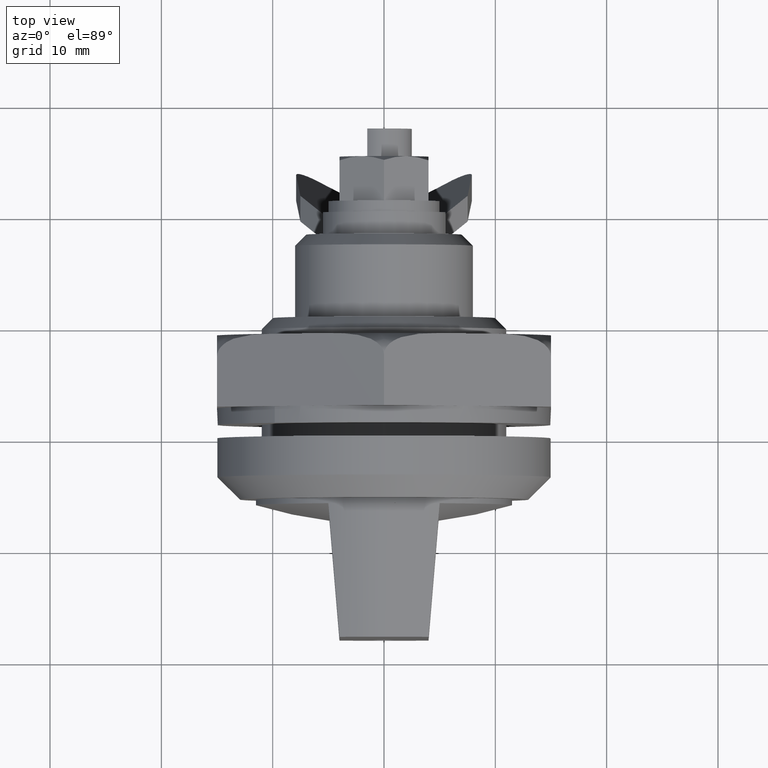
[diagram: clean part render]
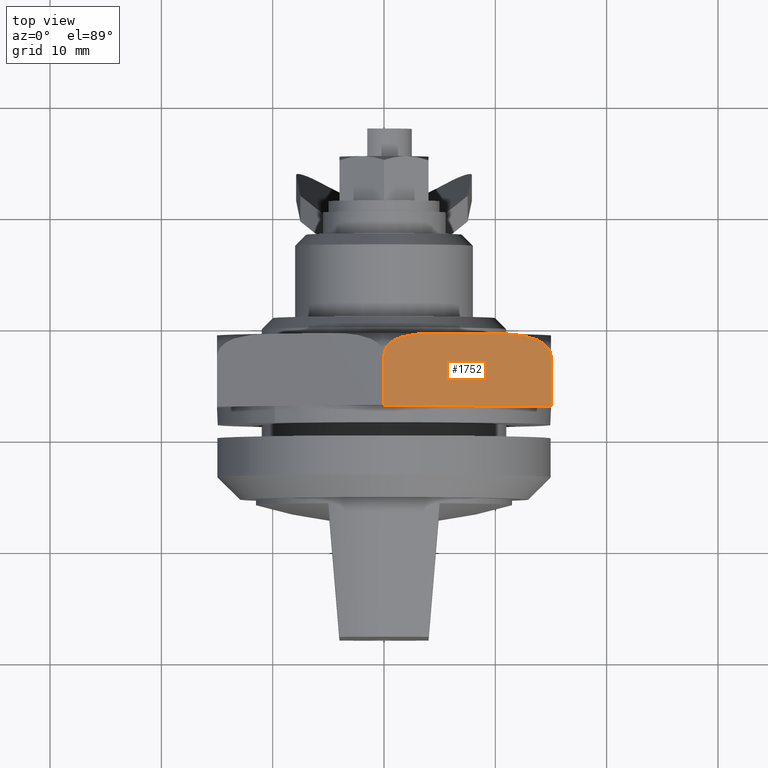
[diagram: same view with one face highlighted and labeled with its STEP entity id]
A machine part, top view. The second image highlights one B-rep face of the part: STEP entity #1752.
In plain terms, the highlighted face is a freeform B-spline surface patch.
Its self-contained STEP definition (entity closure, byte-faithful):
#1345=CARTESIAN_POINT('',(14.999339990319839,7.200000000000000,8.660381045588670));
#1346=VERTEX_POINT('',#1345);
#1360=CARTESIAN_POINT('',(14.999339990319839,2.700000000000000,8.660381045588670));
#1361=VERTEX_POINT('',#1360);
#1362=CARTESIAN_POINT('',(14.999339990319839,7.200000000000000,8.660381045588670));
#1363=CARTESIAN_POINT('',(14.999339990319839,2.700000000000000,8.660381045588670));
#1364=QUASI_UNIFORM_CURVE('',1,(#1362,#1363),.UNSPECIFIED.,.F.,.U.);
#1365=EDGE_CURVE('',#1346,#1361,#1364,.T.);
#1409=CARTESIAN_POINT('',(10.198620151381821,9.199999999999999,11.431996632602219));
#1410=VERTEX_POINT('',#1409);
#1424=CARTESIAN_POINT('',(10.198620151381821,9.199999999999999,11.431996632602219));
#1425=CARTESIAN_POINT('',(10.325483905551691,9.199994106325519,11.358753958528149));
#1426=CARTESIAN_POINT('',(10.452336660610509,9.199314103155210,11.285517634607530));
#1427=CARTESIAN_POINT('',(10.920622287248881,9.193360277870328,11.015160732828310));
#1428=CARTESIAN_POINT('',(11.261941736494791,9.182318522895576,10.818105637463660));
#1429=CARTESIAN_POINT('',(11.944024372111571,9.132608277084488,10.424316595834251));
#1430=CARTESIAN_POINT('',(12.283438889492491,9.094201134651216,10.228361281132999));
#1431=CARTESIAN_POINT('',(12.787496989895221,9.000694203207292,9.937351737833817));
#1432=CARTESIAN_POINT('',(12.954691325552830,8.963482046067771,9.840824874714160));
#1433=CARTESIAN_POINT('',(13.286850036942431,8.872723743291603,9.649058578671898));
#1434=CARTESIAN_POINT('',(13.452370378419060,8.818986200823572,9.553498168192718));
#1435=CARTESIAN_POINT('',(13.695026988163400,8.722406587866495,9.413404418833652));
#1436=CARTESIAN_POINT('',(13.775038234698251,8.687527410607801,9.367211259167531));
#1437=CARTESIAN_POINT('',(13.932968679108519,8.611341914308703,9.276032749261342));
#1438=CARTESIAN_POINT('',(14.011115769205720,8.569904440259151,9.230915829245221));
#1439=CARTESIAN_POINT('',(14.163582050485070,8.479861105220682,9.142891962853277));
#1440=CARTESIAN_POINT('',(14.237837830505010,8.431329684231043,9.100021625855097));
#1441=CARTESIAN_POINT('',(14.381526058252350,8.325705577764248,9.017065622368973));
#1442=CARTESIAN_POINT('',(14.450970596331571,8.268634352284762,8.976972975717903));
#1443=CARTESIAN_POINT('',(14.550495729915150,8.174788688210336,8.919513798595652));
#1444=CARTESIAN_POINT('',(14.583000174268800,8.142002407320494,8.900747899388803));
#1445=CARTESIAN_POINT('',(14.645566408412490,8.073889874882211,8.864626326876516));
#1446=CARTESIAN_POINT('',(14.675615221602181,8.038598100373456,8.847278145395000));
#1447=CARTESIAN_POINT('',(14.732943897220309,7.965242898711462,8.814180390004806));
#1448=CARTESIAN_POINT('',(14.760225240464640,7.927180953819074,8.798429961171740));
#1449=CARTESIAN_POINT('',(14.811616074007651,7.847882116062029,8.768760319939572));
#1450=CARTESIAN_POINT('',(14.835852385678560,7.806386372870916,8.754767889334898));
#1451=CARTESIAN_POINT('',(14.901827350899680,7.678594534726789,8.716678342747246));
#1452=CARTESIAN_POINT('',(14.936984707865580,7.589180136992252,8.696380828658935));
#1453=CARTESIAN_POINT('',(14.973704226919869,7.447400770324840,8.675181426324922));
#1454=CARTESIAN_POINT('',(14.983291876012730,7.398492154666685,8.669646156915306));
#1455=CARTESIAN_POINT('',(14.996089340963159,7.299781577699084,8.662257753817260));
#1456=CARTESIAN_POINT('',(14.999339990317210,7.250073124404214,8.660381045590190));
#1457=CARTESIAN_POINT('',(14.999339990319839,7.200000000000000,8.660381045588670));
#1458=B_SPLINE_CURVE_WITH_KNOTS('',3,(#1424,#1425,#1426,#1427,#1428,#1429,#1430,#1431,#1432,#1433,#1434,#1435,#1436,#1437,#1438,#1439,#1440,#1441,#1442,#1443,#1444,#1445,#1446,#1447,#1448,#1449,#1450,#1451,#1452,#1453,#1454,#1455,#1456,#1457),.UNSPECIFIED.,.F.,.U.,(4,2,2,2,2,2,2,2,2,2,2,2,2,2,2,2,4),(0.664284733650533,0.687499999999999,0.749999999999999,0.812499999999999,0.843750000000000,0.875000000000000,0.890625000000000,0.906250000000000,0.921875000000000,0.937500000000000,0.945312500000000,0.953125000000000,0.960937500000000,0.968750000000000,0.984375000000000,0.992187500000000,1.0),.UNSPECIFIED.);
#1459=EDGE_CURVE('',#1410,#1346,#1458,.T.);
#1643=CARTESIAN_POINT('',(7.585839698707271,2.700000000000000,12.940441880612999));
#1644=VERTEX_POINT('',#1643);
#1645=CARTESIAN_POINT('',(7.585839698707271,2.700000000000000,12.940441880612999));
#1646=CARTESIAN_POINT('',(14.999339990319839,2.700000000000000,8.660381045588670));
#1647=QUASI_UNIFORM_CURVE('',1,(#1645,#1646),.UNSPECIFIED.,.F.,.U.);
#1648=EDGE_CURVE('',#1644,#1361,#1647,.T.);
#1673=CARTESIAN_POINT('',(15.748556993764691,2.375325012598260,8.227833095599856));
#1674=CARTESIAN_POINT('',(-0.749217405758495,2.375325012598260,17.752548182257900));
#1675=CARTESIAN_POINT('',(15.748556993764691,9.524675161745325,8.227833095599856));
#1676=CARTESIAN_POINT('',(-0.749217405758495,9.524675161745325,17.752548182257900));
#1677=B_SPLINE_SURFACE_WITH_KNOTS('',1,1,((#1673,#1675),(#1674,#1676)),.UNSPECIFIED.,.F.,.F.,.U.,(2,2),(2,2),(0.0,19.049849280757421),(0.0,7.149350149147065),.UNSPECIFIED.);
#1678=CARTESIAN_POINT('',(0.0,7.200000000000000,17.320000000000000));
#1679=VERTEX_POINT('',#1678);
#1680=CARTESIAN_POINT('',(0.0,2.700000000000035,17.320000000000000));
#1681=VERTEX_POINT('',#1680);
#1682=CARTESIAN_POINT('',(0.0,7.200000000000000,17.320000000000000));
#1683=CARTESIAN_POINT('',(0.0,2.700000000000035,17.320000000000000));
#1684=QUASI_UNIFORM_CURVE('',1,(#1682,#1683),.UNSPECIFIED.,.F.,.U.);
#1685=EDGE_CURVE('',#1679,#1681,#1684,.T.);
#1686=ORIENTED_EDGE('',*,*,#1685,.T.);
#1687=CARTESIAN_POINT('',(7.413500291612579,2.700000000000000,13.039939164975660));
#1688=VERTEX_POINT('',#1687);
#1689=CARTESIAN_POINT('',(0.0,2.700000000000035,17.320000000000000));
#1690=CARTESIAN_POINT('',(7.413500291612579,2.700000000000000,13.039939164975660));
#1691=QUASI_UNIFORM_CURVE('',1,(#1689,#1690),.UNSPECIFIED.,.F.,.U.);
#1692=EDGE_CURVE('',#1681,#1688,#1691,.T.);
#1693=ORIENTED_EDGE('',*,*,#1692,.T.);
#1694=CARTESIAN_POINT('',(7.413500291612579,2.700000000000000,13.039939164975660));
#1695=CARTESIAN_POINT('',(7.471165918068731,2.700000000000000,13.007154952323891));
#1696=CARTESIAN_POINT('',(7.528614072251118,2.700000000000000,12.973988217976011));
#1697=CARTESIAN_POINT('',(7.585839698707271,2.700000000000000,12.940441880612999));
#1698=QUASI_UNIFORM_CURVE('',3,(#1694,#1695,#1696,#1697),.UNSPECIFIED.,.F.,.U.);
#1699=EDGE_CURVE('',#1688,#1644,#1698,.T.);
#1700=ORIENTED_EDGE('',*,*,#1699,.T.);
#1701=ORIENTED_EDGE('',*,*,#1648,.T.);
#1702=ORIENTED_EDGE('',*,*,#1365,.F.);
#1703=ORIENTED_EDGE('',*,*,#1459,.F.);
#1704=CARTESIAN_POINT('',(4.800719838938041,9.199999999999999,14.548384412986421));
#1705=VERTEX_POINT('',#1704);
#1706=CARTESIAN_POINT('',(4.800719838938041,9.199999999999999,14.548384412986421));
#1707=CARTESIAN_POINT('',(10.198620151381821,9.199999999999999,11.431996632602219));
#1708=QUASI_UNIFORM_CURVE('',1,(#1706,#1707),.UNSPECIFIED.,.F.,.U.);
#1709=EDGE_CURVE('',#1705,#1410,#1708,.T.);
#1710=ORIENTED_EDGE('',*,*,#1709,.F.);
#1711=CARTESIAN_POINT('',(0.0,7.200000000000000,17.320000000000000));
#1712=CARTESIAN_POINT('',(5.722848E-012,7.300961997585984,17.319999999996700));
#1713=CARTESIAN_POINT('',(0.013123231997013,7.399242095174027,17.312423520727069));
#1714=CARTESIAN_POINT('',(0.050430894692262,7.543060794383477,17.290884563464338));
#1715=CARTESIAN_POINT('',(0.065900466675627,7.590464664944741,17.281953463905939));
#1716=CARTESIAN_POINT('',(0.101476968959860,7.681632538367897,17.261413963253840));
#1717=CARTESIAN_POINT('',(0.121657949541098,7.725744998045334,17.249762810464940));
#1718=CARTESIAN_POINT('',(0.166272707987420,7.811354538731941,17.224005223255261));
#1719=CARTESIAN_POINT('',(0.190836821038353,7.853038759967649,17.209823541987191));
#1720=CARTESIAN_POINT('',(0.243178961096957,7.933046783758697,17.179604679793361));
#1721=CARTESIAN_POINT('',(0.270861099694794,7.971278179241018,17.163622858442871));
#1722=CARTESIAN_POINT('',(0.357774738341646,8.081435772944234,17.113444717730751));
#1723=CARTESIAN_POINT('',(0.420840156883807,8.148864447366844,17.077034949425752));
#1724=CARTESIAN_POINT('',(0.521439693360193,8.242967278482071,17.018955483700040));
#1725=CARTESIAN_POINT('',(0.556088892449778,8.273233771301557,16.998951346092330));
#1726=CARTESIAN_POINT('',(0.626666689474482,8.331171844171756,16.958204431276730));
#1727=CARTESIAN_POINT('',(0.662537204180692,8.358810475076503,16.937495187453010));
#1728=CARTESIAN_POINT('',(0.771670474493991,8.438245527734255,16.874488912725461));
#1729=CARTESIAN_POINT('',(0.846444667122393,8.486584645180438,16.831319278847999));
#1730=CARTESIAN_POINT('',(0.999205536329373,8.575914552329131,16.743125337025841));
#1731=CARTESIAN_POINT('',(1.077197967825045,8.616892178069552,16.698097706575670));
#1732=CARTESIAN_POINT('',(1.235859180024965,8.692725471761275,16.606497300065580));
#1733=CARTESIAN_POINT('',(1.316693793531215,8.727638071285462,16.559828783201301));
#1734=CARTESIAN_POINT('',(1.561530519696226,8.824094352889974,16.418476379962041));
#1735=CARTESIAN_POINT('',(1.726283080188849,8.876935475202327,16.323359235037628));
#1736=CARTESIAN_POINT('',(2.057919745455963,8.966627660799093,16.131894333623411));
#1737=CARTESIAN_POINT('',(2.224814170447532,9.003401305621386,16.035540618928280));
#1738=CARTESIAN_POINT('',(2.727888159886180,9.095787981943845,15.745099235692360));
#1739=CARTESIAN_POINT('',(3.066427569577041,9.133698324803749,15.549649149830840));
#1740=CARTESIAN_POINT('',(3.576914482879190,9.170475980401116,15.254928038551061));
#1741=CARTESIAN_POINT('',(3.747635510751942,9.179304041648040,15.156365098459201));
#1742=CARTESIAN_POINT('',(4.089246600028961,9.191933919668196,14.959141629583270));
#1743=CARTESIAN_POINT('',(4.260048507106442,9.195735325139093,14.860531995230531));
#1744=CARTESIAN_POINT('',(4.554139730115424,9.199350963569238,14.690743329146679));
#1745=CARTESIAN_POINT('',(4.677430245089985,9.199993728317034,14.619563605168031));
#1746=CARTESIAN_POINT('',(4.800719838938041,9.199999999999999,14.548384412986421));
#1747=B_SPLINE_CURVE_WITH_KNOTS('',3,(#1711,#1712,#1713,#1714,#1715,#1716,#1717,#1718,#1719,#1720,#1721,#1722,#1723,#1724,#1725,#1726,#1727,#1728,#1729,#1730,#1731,#1732,#1733,#1734,#1735,#1736,#1737,#1738,#1739,#1740,#1741,#1742,#1743,#1744,#1745,#1746),.UNSPECIFIED.,.F.,.U.,(4,2,2,2,2,2,2,2,2,2,2,2,2,2,2,2,2,4),(0.0,0.015625000000000,0.023437500000000,0.031250000000000,0.039062500000000,0.046874999999999,0.062500000000000,0.070312500000000,0.078125000000000,0.093750000000000,0.109375000000000,0.125000000000000,0.156250000000000,0.187500000000000,0.250000000000000,0.281250000000000,0.312500000000000,0.335057848965590),.UNSPECIFIED.);
#1748=EDGE_CURVE('',#1679,#1705,#1747,.T.);
#1749=ORIENTED_EDGE('',*,*,#1748,.F.);
#1750=EDGE_LOOP('',(#1686,#1693,#1700,#1701,#1702,#1703,#1710,#1749));
#1751=FACE_OUTER_BOUND('',#1750,.T.);
#1752=ADVANCED_FACE('',(#1751),#1677,.F.);